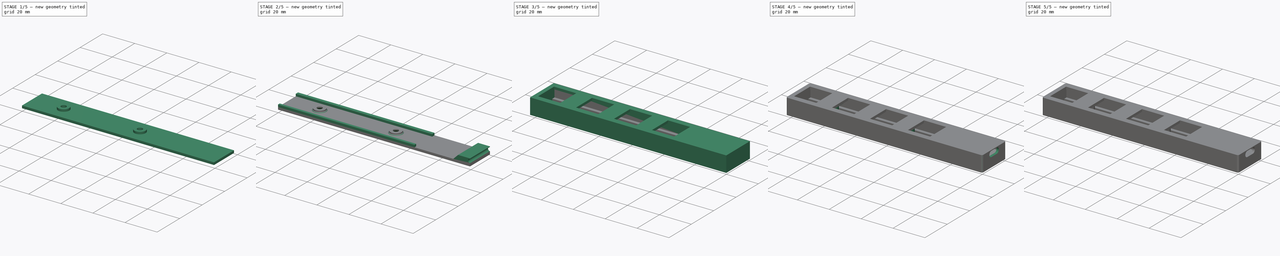
[diagram: build sequence overview — one tinted view per stage of 5, left to right]
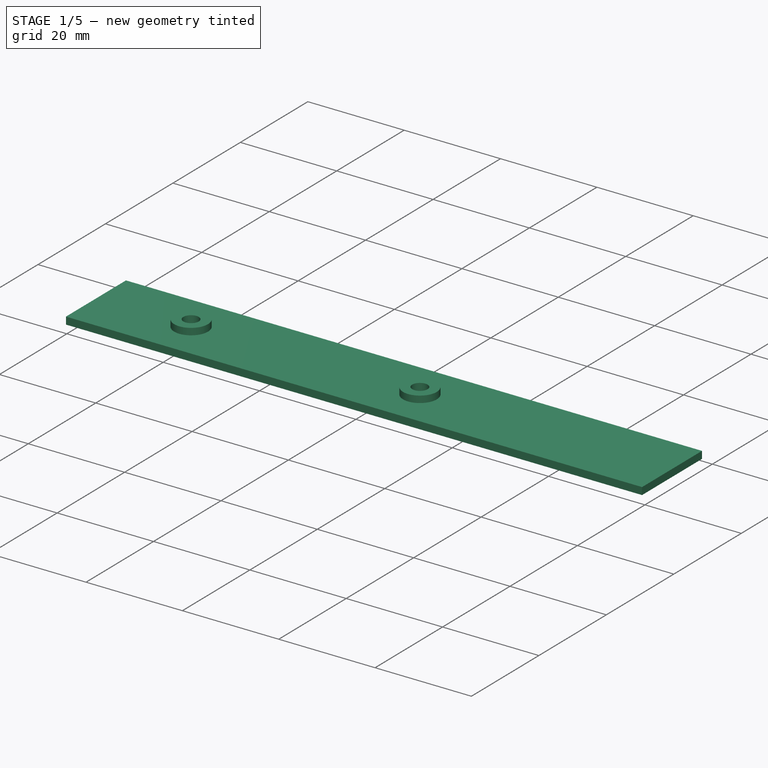
[diagram: stage 1 of 5 — iso view after this stage's code; geometry added in this stage tinted green]
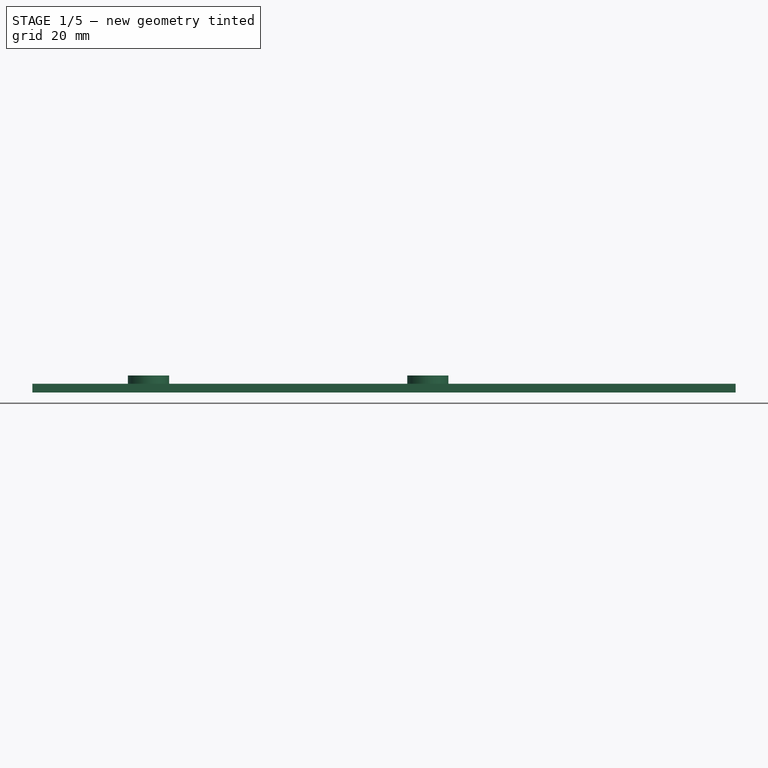
[diagram: stage 1 of 5 — front view after this stage's code; geometry added in this stage tinted green]
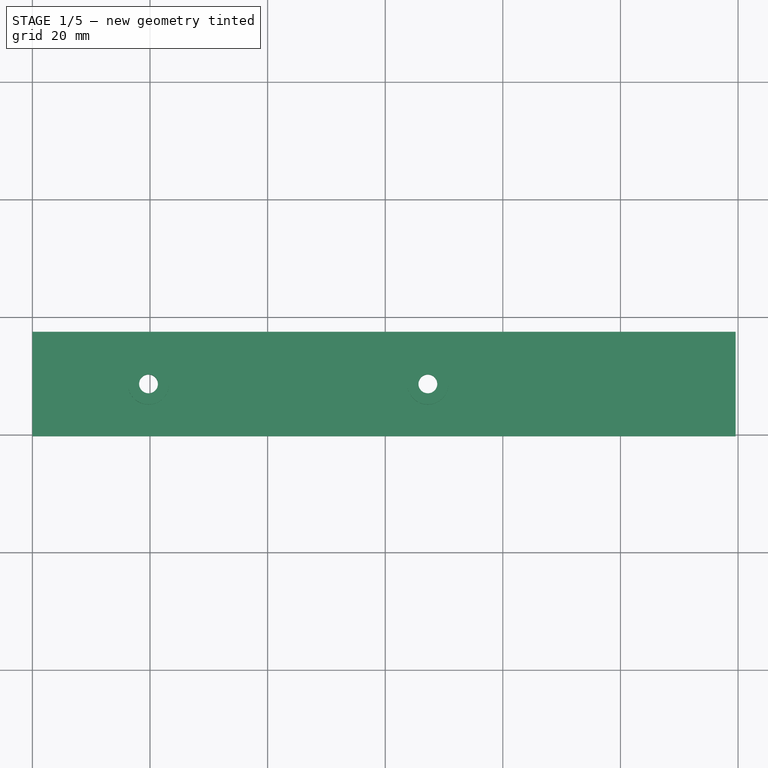
[diagram: stage 1 of 5 — top view after this stage's code; geometry added in this stage tinted green]
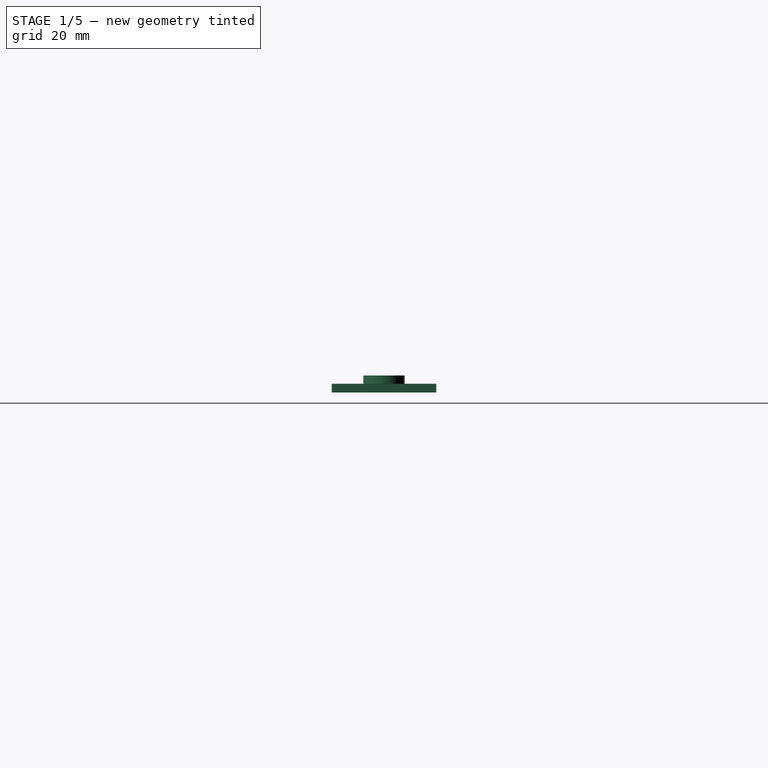
[diagram: stage 1 of 5 — right view after this stage's code; geometry added in this stage tinted green]
FCSTD DOCUMENT  (FreeCAD 0.18R4 (GitTag))
Label: extra-space
License: All rights reserved
LicenseURL: http://en.wikipedia.org/wiki/All_rights_reserved
objects: Part::Feature×32, Sketcher::SketchObject×17, PartDesign::Pad×11, App::Part×7, PartDesign::CoordinateSystem×6, PartDesign::ShapeBinder×5, PartDesign::Pocket×5, PartDesign::Chamfer×3, App::DocumentObjectGroup×2, PartDesign::Body×2, App::FeaturePython×1, PartDesign::Fillet×1
note: 98 computed .brp shape members not serialized (recipe doc carries the construction recipe); baked Part::Feature solids carry a one-line shape summary decoded from their .brp

FEATURE [PartDesign::CoordinateSystem] Local_CS_f5c5
  AttacherType = Attacher::AttachEngine3D
FEATURE [Part::Feature] Pcb_f5c5
  Placement = pos=(-93.4848,101.426,0) rot=(0,0,1;0rad)
  shape: bbox 109.2 x 17.27 x 1.6 mm, 53 faces (baked)
FEATURE [Sketcher::SketchObject] PCB_Sketch_f5c5
  sketch-geometry (8):
    g0: LineSegment StartX=86.156 StartY=16.256 StartZ=0 EndX=109.172 EndY=16.256 EndZ=0
    g1: LineSegment StartX=85.156 StartY=17.272 StartZ=0 EndX=86.156 EndY=16.256 EndZ=0
    g2: LineSegment StartX=86.156 StartY=1.016 StartZ=0 EndX=109.172 EndY=1.016 EndZ=0
    g3: LineSegment StartX=85.156 StartY=0.016 StartZ=0 EndX=86.156 EndY=1.016 EndZ=0
    g4: LineSegment StartX=0 StartY=0 StartZ=0 EndX=0 EndY=17.272 EndZ=0
    g5: LineSegment StartX=85.156 StartY=0.016 StartZ=0 EndX=0 EndY=0 EndZ=0
    g6: LineSegment StartX=109.172 StartY=16.256 StartZ=0 EndX=109.172 EndY=1.016 EndZ=0
    g7: LineSegment StartX=85.156 StartY=17.272 StartZ=0 EndX=0 EndY=17.272 EndZ=0
  constraints (8):
    c: Coincident(g4,g5)
    c: Coincident(g4,g7)
    c: Coincident(g3,g5)
    c: Coincident(g1,g7)
    c: Coincident(g2,g3)
    c: Coincident(g0,g1)
    c: Coincident(g2,g6)
    c: Coincident(g0,g6)
FEATURE [App::Part] Board_Geoms_f5c5
  Group = -> [Local_CS_f5c5,Pcb_f5c5,PCB_Sketch_f5c5]
  Origin = -> Origin
FEATURE [App::Part] Step_Models_f5c5
  Origin = -> Origin002
FEATURE [PartDesign::CoordinateSystem] LCS_Origin
  AttacherType = Attacher::AttachEngine3D
  MapMode = 2
  Support = -> [X_Axis003]
FEATURE [App::DocumentObjectGroup] Constraints
FEATURE [App::FeaturePython] Variables  # WARN: FeaturePython — macro-defined, semantics opaque (R4)
FEATURE [App::Part] Model
  Group = -> [LCS_Origin,Constraints,Variables]
  Origin = -> Origin003
  Type = Assembly4 Model
FEATURE [Part::Feature] Part__Feature  label="micro board"
  shape: bbox 33.02 x 3.27 x 17.78 mm, 246 faces (baked)
FEATURE [Part::Feature] Part__Feature014  label="micro usb shell"
  shape: bbox 8 x 2.95 x 5.63 mm, 171 faces (baked)
FEATURE [Part::Feature] Part__Feature015  label="micro usb internal"
  Placement = pos=(0,-0.25,0) rot=(0,0,1;0rad)
  shape: bbox 6.9 x 2.9 x 4 mm, 126 faces (baked)
FEATURE [Part::Feature] Part__Feature016  label="micro usb contact"
  Placement = pos=(1.3,-0.25,-0.1) rot=(0,0,1;0rad)
  shape: bbox 0.2 x 1.3 x 4.4 mm, 16 faces (baked)
FEATURE [Part::Feature] Part__Feature017  label="micro usb contact001"
  Placement = pos=(0.65,-0.25,-0.1) rot=(0,0,1;0rad)
  shape: bbox 0.2 x 1.3 x 4.4 mm, 16 faces (baked)
FEATURE [Part::Feature] Part__Feature018  label="micro usb contact002"
  Placement = pos=(-3e-15,-0.25,-0.1) rot=(0,0,1;0rad)
  shape: bbox 0.2 x 1.3 x 4.4 mm, 16 faces (baked)
FEATURE [Part::Feature] Part__Feature019  label="micro usb contact003"
  Placement = pos=(-0.65,-0.25,-0.1) rot=(0,0,1;0rad)
  shape: bbox 0.2 x 1.3 x 4.4 mm, 16 faces (baked)
FEATURE [Part::Feature] Part__Feature020  label="micro usb contact004"
  Placement = pos=(-1.3,-0.25,-0.1) rot=(0,0,1;0rad)
  shape: bbox 0.2 x 1.3 x 4.4 mm, 16 faces (baked)
FEATURE [App::Part] micro_usb  label="micro usb"
  Group = -> [Part__Feature014,Part__Feature015,Part__Feature016,Part__Feature017,Part__Feature018,Part__Feature019,Part__Feature020]
  Origin = -> Origin005
  Placement = pos=(-4.75,1.85,-7.62) rot=(0,-1,0;1.5708rad)
FEATURE [Part::Feature] Part__Feature021  label="atmega32U4"
  Placement = pos=(15.24,1.62,-7.62) rot=(0,1,0;3.92699rad)
  shape: bbox 9.899 x 1.02 x 9.899 mm, 1164 faces (baked)
FEATURE [Part::Feature] Part__Feature022  label="MICRO_cap106C"
  Placement = pos=(7.3558,1.6,-11.4427) rot=(0,1,0;1.5708rad)
  shape: bbox 4.001 x 1.811 x 1.701 mm, 124 faces (baked)
FEATURE [Part::Feature] Part__Feature023  label="MICRO_cap106C001"
  Placement = pos=(7.3558,1.6,-3.7973) rot=(0,1,0;1.5708rad)
  shape: bbox 4.001 x 1.811 x 1.701 mm, 124 faces (baked)
FEATURE [Part::Feature] Part__Feature037  label="micro_crystal 5x3"
  Placement = pos=(27.051,1.65,-7.62) rot=(0,1,0;1.5708rad)
  shape: bbox 3.4 x 1 x 5.7 mm, 43 faces (baked)
FEATURE [Part::Feature] Part__Feature038  label="micro_MIC5219"
  Placement = pos=(7.366,1.6,-7.874) rot=(0,1,0;3.14159rad)
  shape: bbox 2.9 x 1.2 x 3.683 mm, 123 faces (baked)
FEATURE [Part::Feature] Part__Feature039  label="MICRO_603 resistor 103"
  Placement = pos=(1.27,1.6,-3.81) rot=(0,-1,0;1.5708rad)
  shape: bbox 1.02 x 0.6154 x 2.362 mm, 141 faces, 4 solids (baked)
FEATURE [Part::Feature] Part__Feature040  label="MICRO_603 resistor 102"
  Placement = pos=(2.667,1.6,-3.81) rot=(0,-1,0;1.5708rad)
  shape: bbox 1.02 x 0.6154 x 2.362 mm, 131 faces, 4 solids (baked)
FEATURE [Part::Feature] Part__Feature041  label="MICRO_603 resistor 22"
  Placement = pos=(1.27,1.6,-11.43) rot=(0,-1,0;1.5708rad)
  shape: bbox 1.02 x 0.6154 x 2.362 mm, 144 faces, 4 solids (baked)
FEATURE [Part::Feature] Part__Feature042  label="MICRO_603 resistor 104"
  Placement = pos=(2.667,1.6,-11.43) rot=(0,-1,0;1.5708rad)
  shape: bbox 1.02 x 0.6154 x 2.362 mm, 144 faces, 4 solids (baked)
FEATURE [Part::Feature] Part__Feature043  label="MICRO_PTC-1206"
  Placement = pos=(4.445,1.6,-7.62) rot=(0,-1,0;1.5708rad)
  shape: bbox 1.821 x 1.171 x 3.85 mm, 118 faces (baked)
FEATURE [Part::Feature] Part__Feature044  label="MICRO_603 resistor 331"
  Placement = pos=(27.432,1.6,-11.938) rot=(0,0,1;0rad)
  shape: bbox 2.362 x 0.6154 x 1.02 mm, 158 faces, 4 solids (baked)
FEATURE [Part::Feature] Part__Feature045  label="MICRO_603 resistor 332"
  Placement = pos=(27.432,1.6,-3.302) rot=(0,0,1;0rad)
  shape: bbox 2.362 x 0.6154 x 1.02 mm, 158 faces, 4 solids (baked)
FEATURE [Part::Feature] Part__Feature046  label="MICRO_603 cap on pad"
  Placement = pos=(24.384,1.6,-9.398) rot=(0,-1,0;1.5708rad)
  shape: bbox 1.226 x 0.955 x 3.329 mm, 56 faces (baked)
FEATURE [Part::Feature] Part__Feature047  label="MICRO_603 cap on pad001"
  Placement = pos=(21.336,1.6,-11.938) rot=(0,0,1;0rad)
  shape: bbox 3.329 x 0.955 x 1.226 mm, 56 faces (baked)
FEATURE [Part::Feature] Part__Feature048  label="MICRO_603 cap on pad002"
  Placement = pos=(24.384,1.6,-5.715) rot=(0,-1,0;1.5708rad)
  shape: bbox 1.226 x 0.955 x 3.329 mm, 56 faces (baked)
FEATURE [Part::Feature] Part__Feature049  label="MICRO_603 cap on pad003"
  Placement = pos=(21.336,1.6,-3.1877) rot=(0,0,1;0rad)
  shape: bbox 3.329 x 0.955 x 1.226 mm, 56 faces (baked)
FEATURE [Part::Feature] Part__Feature050  label="MICRO_603 cap on pad004"
  Placement = pos=(11.0744,1.6,-3.5839) rot=(0,1,0;1.5708rad)
  shape: bbox 1.226 x 0.955 x 3.329 mm, 56 faces (baked)
FEATURE [Part::Feature] Part__Feature051  label="MICRO_603 cap on pad005"
  Placement = pos=(10.6528,1.6,-11.4681) rot=(0,-1,0;1.5708rad)
  shape: bbox 1.226 x 0.955 x 3.329 mm, 56 faces (baked)
FEATURE [Part::Feature] Part__Feature052  label="MICRO_603 cap on pad006"
  Placement = pos=(4.1758,1.6,-11.43) rot=(0,1,0;1.5708rad)
  shape: bbox 1.226 x 0.955 x 3.329 mm, 56 faces (baked)
FEATURE [Part::Feature] Part__Feature053  label="SOD 323"
  Placement = pos=(2.6416,1.6,-7.62) rot=(0,-1,0;1.5708rad)
  shape: bbox 1.25 x 1.105 x 2.93 mm, 59 faces (baked)
FEATURE [Part::Feature] Part__Feature054  label="MICRO_led"
  Placement = pos=(24.384,1.62,-2.6907) rot=(0,0,1;0rad)
  shape: bbox 2.481 x 0.7208 x 0.8565 mm, 81 faces, 2 solids (baked)
FEATURE [Part::Feature] Part__Feature055  label="MICRO_led001"
  Placement = pos=(24.384,1.62,-11.938) rot=(0,0,1;0rad)
  shape: bbox 2.481 x 0.7208 x 0.8565 mm, 81 faces, 2 solids (baked)
FEATURE [Part::Feature] Part__Feature056  label="MICRO_led002"
  Placement = pos=(4.1046,1.62,-3.81) rot=(0,1,0;1.5708rad)
  shape: bbox 0.8565 x 0.7208 x 2.481 mm, 81 faces, 2 solids (baked)
FEATURE [PartDesign::CoordinateSystem] PIN_10
  AttacherType = Attacher::AttachEngine3D
  MapMode = 11
  Placement = pos=(87.836,1.016,0) rot=(0,0,1;1.5708rad)
  Support = -> [Pcb_f5c5]
FEATURE [PartDesign::CoordinateSystem] PIN_10001
  AttacherType = Attacher::AttachEngine3D
  MapMode = 11
  Placement = pos=(27.94,0,-15.24) rot=(-1,0,0;1.5708rad)
  Support = -> [Part__Feature]
FEATURE [App::Part] ARDUINO_PRO_MICRO  label="ARDUINO PRO MICRO"
  Group = -> [Part__Feature,micro_usb,Part__Feature021,Part__Feature022,Part__Feature023,Part__Feature037,Part__Feature038,Part__Feature039,Part__Feature040,Part__Feature041,Part__Feature042,Part__Feature043,Part__Feature044,Part__Feature045,Part__Feature046,Part__Feature047,Part__Feature048,Part__Feature049,Part__Feature050,Part__Feature051,Part__Feature052,Part__Feature053,Part__Feature054,Part__Feature055,+2 more]
  Origin = -> Origin007
  Placement = pos=(0,0,0) rot=(0,0.707107,0.707107;3.14159rad)
FEATURE [PartDesign::CoordinateSystem] ORIGIN
  AttacherType = Attacher::AttachEngine3D
FEATURE [App::Part] Board_f5c5  label="pcb"
  Group = -> [Board_Geoms_f5c5,Step_Models_f5c5,PIN_10,ORIGIN]
  Origin = -> Origin001
FEATURE [PartDesign::CoordinateSystem] LCS_0
  AttacherType = Attacher::AttachEngine3D
  MapMode = 2
  Support = -> [X_Axis008]
FEATURE [PartDesign::ShapeBinder] CopyPcb_f5c5
  Placement = pos=(-93.4848,101.426,-1.6) rot=(0,0,1;0rad)
  TraceSupport = false
FEATURE [Sketcher::SketchObject] Sketch
  ExternalGeometry = -> [CopyPcb_f5c5]
  MapMode = 5
  Placement = pos=(-93.4848,101.426,-1.6) rot=(1,0,0;3.14159rad)
  Support = -> [CopyPcb_f5c5]
  sketch-geometry (2):
    g0: Circle CenterX=113.234 CenterY=92.79 CenterZ=0 NormalX=0 NormalY=0 NormalZ=1 AngleXU=0 Radius=1.6
    g1: Circle CenterX=113.234 CenterY=92.79 CenterZ=0 NormalX=0 NormalY=0 NormalZ=1 AngleXU=0 Radius=3.5
  constraints (3):
    c: Coincident(g0,g-3)
    c: Radius(g0) = 1.6
    c: Coincident(g1,g0)
FEATURE [PartDesign::Pad] Pad
  Length = 1.4
  Length2 = 100
  Placement = pos=(-93.4848,101.426,-1.6) rot=(0,0,1;0rad)
  Profile = -> Sketch
  Type = 0
FEATURE [Sketcher::SketchObject] Sketch001
  MapMode = 5
  Placement = pos=(-93.4848,101.426,-3) rot=(1,0,0;3.14159rad)
  Support = -> [Pad]
  sketch-geometry (5):
    g0: LineSegment StartX=213.071 StartY=101.68 StartZ=0 EndX=213.071 EndY=83.9 EndZ=0
    g1: LineSegment StartX=213.071 StartY=101.68 StartZ=0 EndX=93.4848 EndY=101.68 EndZ=0
    g2: LineSegment StartX=213.071 StartY=83.9 StartZ=0 EndX=93.4848 EndY=83.9 EndZ=0
    g3: LineSegment StartX=93.4848 StartY=101.68 StartZ=0 EndX=93.4848 EndY=83.9 EndZ=0
    g4: Circle CenterX=113.234 CenterY=92.79 CenterZ=0 NormalX=0 NormalY=0 NormalZ=1 AngleXU=0 Radius=1.6
  constraints (12):
    c: Coincident(g0,g-3)
    c: Coincident(g0,g-3)
    c: Coincident(g1,g0)
    c: Horizontal(g1)
    c: Coincident(g2,g0)
    c: Horizontal(g2)
    c: Coincident(g3,g1)
    c: Coincident(g3,g2)
    c: Vertical(g3)
    c: PointOnObject(g-4,g3)
    c: Coincident(g4,g-5)
    c: Equal(g-5,g4)
FEATURE [PartDesign::Pad] Pad001
  BaseFeature = -> Pad
  Length = 1.5
  Length2 = 100
  Placement = pos=(-93.4848,101.426,-1.6) rot=(0,0,1;0rad)
  Profile = -> Sketch001
  Type = 0
FEATURE [Sketcher::SketchObject] Sketch002
  ExternalGeometry = -> [CopyPcb_f5c5,Pad001]
  MapMode = 5
  Placement = pos=(-93.4848,101.426,-3) rot=(0,0,1;0rad)
  Support = -> [Pad001]
  sketch-geometry (2):
    g0: Circle CenterX=160.734 CenterY=-92.79 CenterZ=0 NormalX=0 NormalY=0 NormalZ=1 AngleXU=0 Radius=1.6
    g1: Circle CenterX=160.734 CenterY=-92.79 CenterZ=0 NormalX=0 NormalY=0 NormalZ=1 AngleXU=0 Radius=3.5
  constraints (4):
    c: Coincident(g0,g-3)
    c: Coincident(g1,g0)
    c: Equal(g-4,g1)
    c: Equal(g0,g-3)
FEATURE [PartDesign::Pad] Pad002
  BaseFeature = -> Pad001
  Length = 1.4
  Length2 = 100
  Placement = pos=(-93.4848,101.426,-1.6) rot=(0,0,1;0rad)
  Profile = -> Sketch002
  Type = 0
FEATURE [Sketcher::SketchObject] Sketch003
  ExternalGeometry = -> [CopyPcb_f5c5]
  MapMode = 5
  Placement = pos=(-93.4848,101.426,-4.5) rot=(1,0,0;3.14159rad)
  Support = -> [Pad002]
  sketch-geometry (1):
    g0: Circle CenterX=160.734 CenterY=92.79 CenterZ=0 NormalX=0 NormalY=0 NormalZ=1 AngleXU=0 Radius=1.6
  constraints (2):
    c: Coincident(g0,g-3)
    c: Equal(g0,g-3)
FEATURE [PartDesign::Pocket] Pocket
  BaseFeature = -> Pad002
  Length = 5
  Length2 = 100
  Placement = pos=(-93.4848,101.426,-1.6) rot=(0,0,1;0rad)
  Profile = -> Sketch003
  Type = 1
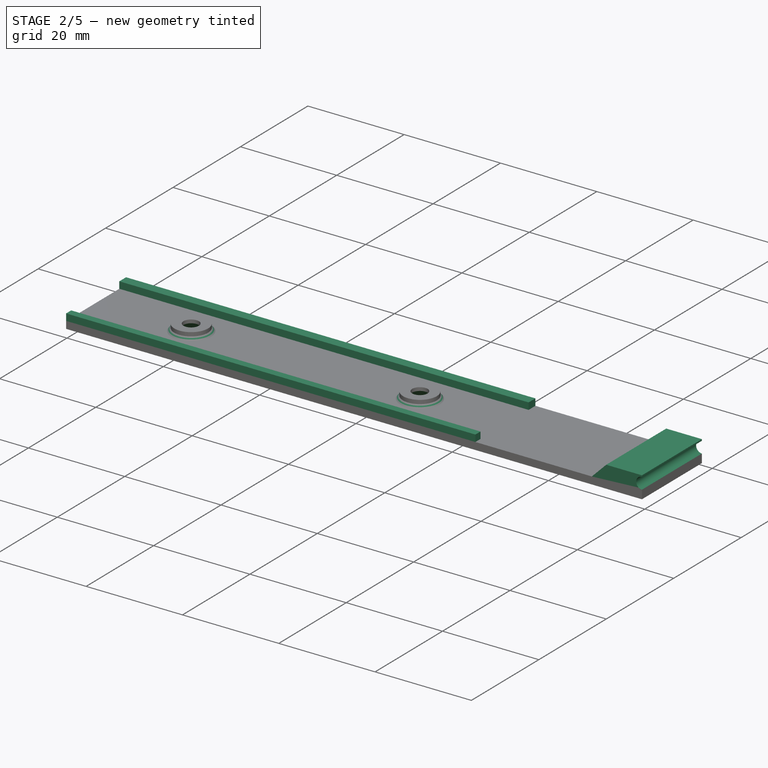
[diagram: stage 2 of 5 — iso view after this stage's code; geometry added in this stage tinted green]
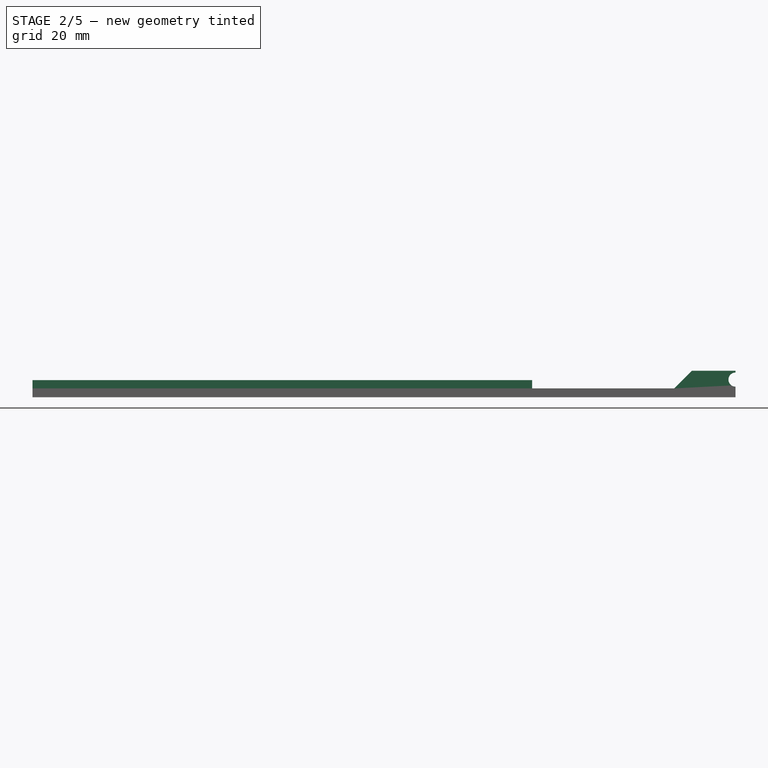
[diagram: stage 2 of 5 — front view after this stage's code; geometry added in this stage tinted green]
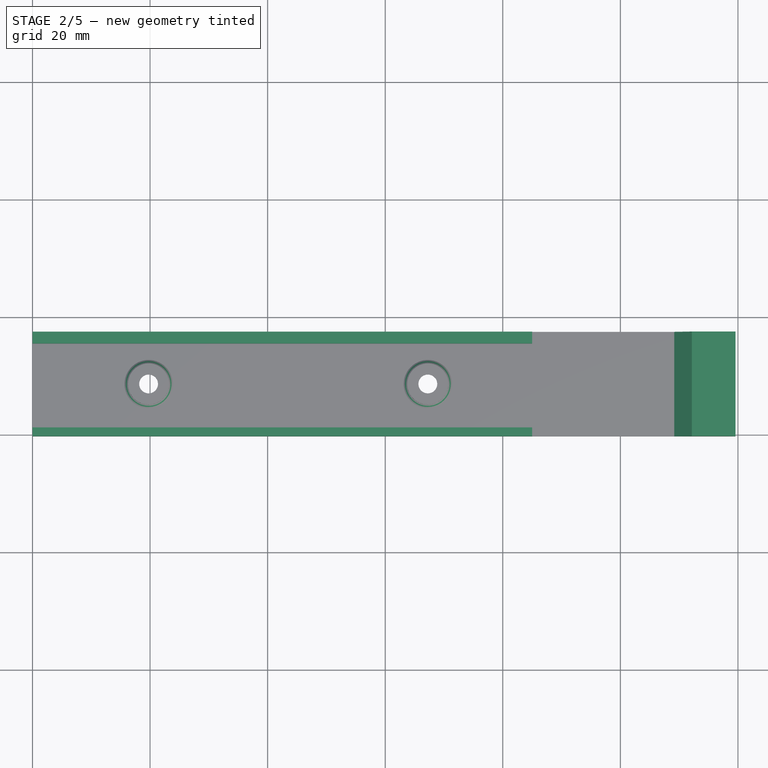
[diagram: stage 2 of 5 — top view after this stage's code; geometry added in this stage tinted green]
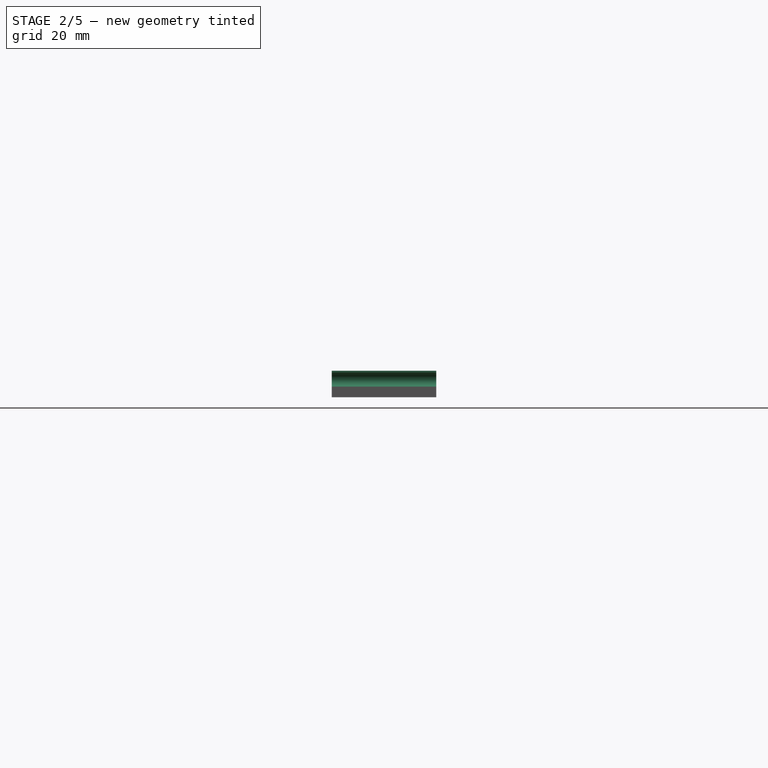
[diagram: stage 2 of 5 — right view after this stage's code; geometry added in this stage tinted green]
FEATURE [Sketcher::SketchObject] Sketch004
  MapMode = 5
  Placement = pos=(-93.4848,-0.254,-1.6) rot=(1,0,0;1.5708rad)
  Support = -> [Pocket]
  sketch-geometry (8):
    g0: LineSegment StartX=202.657 StartY=-1.4 StartZ=0 EndX=205.657 EndY=1.6 EndZ=0
    g1: LineSegment [constr] StartX=202.657 StartY=2e-15 StartZ=0 EndX=202.657 EndY=-1.4 EndZ=0
    g2: ArcOfCircle CenterX=213.071 CenterY=0.1 CenterZ=0 NormalX=0 NormalY=0 NormalZ=1 AngleXU=0 Radius=1.2 StartAngle=1.5708 EndAngle=4.71239
    g3: LineSegment StartX=213.071 StartY=1.3 StartZ=0 EndX=213.071 EndY=1.6 EndZ=0
    g4: LineSegment StartX=213.071 StartY=-1.1 StartZ=0 EndX=213.071 EndY=-1.4 EndZ=0
    g5: LineSegment StartX=205.657 StartY=1.6 StartZ=0 EndX=213.071 EndY=1.6 EndZ=0
    g6: LineSegment StartX=213.071 StartY=-1.4 StartZ=0 EndX=202.657 EndY=-1.4 EndZ=0
    g7: LineSegment [constr] StartX=213.071 StartY=1.3 StartZ=0 EndX=213.071 EndY=-1.1 EndZ=0
  constraints (22):
    c: PointOnObject(g0,g-4)
    c: Coincident(g1,g-3)
    c: Coincident(g1,g0)
    c: Vertical(g1)
    c: Coincident(g3,g2)
    c: Vertical(g3)
    c: Coincident(g4,g2)
    c: PointOnObject(g4,g-4)
    c: Vertical(g4)
    c: Equal(g3,g4)
    c: Radius(g2) = 1.2
    c: Coincident(g5,g0)
    c: Coincident(g5,g3)
    c: Coincident(g6,g4)
    c: Coincident(g6,g0)
    c: Horizontal(g5)
    c: Coincident(g3,g-5)
    c: Coincident(g7,g2)
    c: Coincident(g7,g2)
    c: PointOnObject(g2,g7)
    c: Vertical(g7)
    c: Angle(g-6,g0) = 0.785398
FEATURE [PartDesign::Pad] Pad003
  BaseFeature = -> Pocket
  Length = 2
  Length2 = 100
  Placement = pos=(-93.4848,101.426,-1.6) rot=(0,0,1;0rad)
  Profile = -> Sketch004
  Reversed = true
  Type = 3
  UpToFace = -> Pocket [Face7]
FEATURE [PartDesign::Chamfer] Chamfer
  Base = -> Pad003 [Edge27,Edge34]
  BaseFeature = -> Pad003
  Placement = pos=(-93.4848,101.426,-1.6) rot=(0,0,1;0rad)
  Size = 2.2
FEATURE [PartDesign::Chamfer] Chamfer002
  Base = -> Chamfer [Edge13,Edge27]
  BaseFeature = -> Chamfer
  Placement = pos=(-93.4848,101.426,-1.6) rot=(0,0,1;0rad)
  Size = 0.6
FEATURE [PartDesign::Body] Body001  label="Top"
  Group = -> [ShapeBinder,Sketch005,Pad004,Sketch006,Pad005,ShapeBinder001,Sketch007,Pocket001,ShapeBinder002,Sketch008,Pad006,Sketch009,Pad007,Sketch010,Pocket002,Fillet,ShapeBinder003,Sketch011,Pad008,Sketch012,Pocket003,Chamfer001,Sketch013,Pocket004]
  Origin = -> Origin010
  Tip = -> Pocket004
FEATURE [Sketcher::SketchObject] Sketch014
  ExternalGeometry = -> [Chamfer002]
  MapMode = 5
  Placement = pos=(5.68e-14,101.426,-1.6) rot=(0.57735,-0.57735,-0.57735;2.0944rad)
  Support = -> [Chamfer002]
  sketch-geometry (8):
    g0: LineSegment StartX=83.9 StartY=0 StartZ=0 EndX=83.9 EndY=-1.4 EndZ=0
    g1: LineSegment StartX=101.68 StartY=0 StartZ=0 EndX=101.68 EndY=-1.4 EndZ=0
    g2: LineSegment StartX=83.9 StartY=0 StartZ=0 EndX=85.9 EndY=0 EndZ=0
    g3: LineSegment StartX=85.9 StartY=0 StartZ=0 EndX=85.9 EndY=-1.4 EndZ=0
    g4: LineSegment StartX=83.9 StartY=-1.4 StartZ=0 EndX=85.9 EndY=-1.4 EndZ=0
    g5: LineSegment StartX=101.68 StartY=0 StartZ=0 EndX=100.18 EndY=0 EndZ=0
    g6: LineSegment StartX=100.18 StartY=0 StartZ=0 EndX=100.18 EndY=-1.4 EndZ=0
    g7: LineSegment StartX=100.18 StartY=-1.4 StartZ=0 EndX=101.68 EndY=-1.4 EndZ=0
  constraints (24):
    c: PointOnObject(g0,g-3)
    c: PointOnObject(g1,g-4)
    c: Coincident(g2,g0)
    c: PointOnObject(g2,g-1)
    c: Horizontal(g2)
    c: Coincident(g3,g2)
    c: PointOnObject(g3,g-5)
    c: Vertical(g3)
    c: Coincident(g4,g0)
    c: Coincident(g4,g3)
    c: Horizontal(g4)
    c: Coincident(g5,g1)
    c: PointOnObject(g5,g-1)
    c: Horizontal(g5)
    c: Coincident(g6,g5)
    c: PointOnObject(g6,g-5)
    c: Vertical(g6)
    c: Coincident(g7,g6)
    c: DistanceX(g5,g5) = 1.5
    c: DistanceX(g2,g2) = 2
    c: PointOnObject(g0,g-3)
    c: PointOnObject(g1,g-4)
    c: PointOnObject(g1,g-5)
    c: Coincident(g7,g1)
FEATURE [PartDesign::Pad] Pad009
  BaseFeature = -> Chamfer002
  Length = 85
  Length2 = 100
  Placement = pos=(-93.4848,101.426,-1.6) rot=(0,0,1;0rad)
  Profile = -> Sketch014
  Reversed = true
  Type = 0
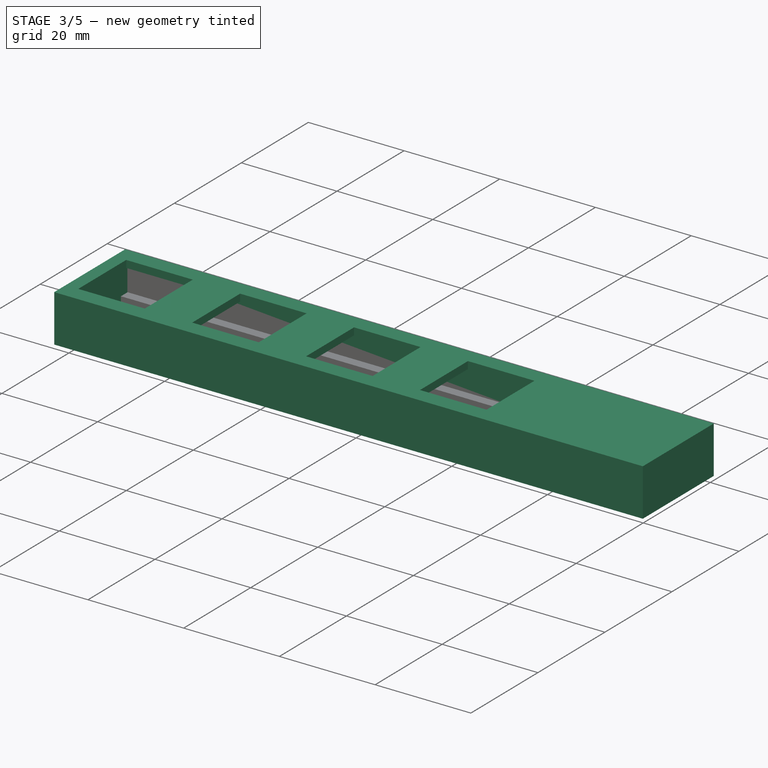
[diagram: stage 3 of 5 — iso view after this stage's code; geometry added in this stage tinted green]
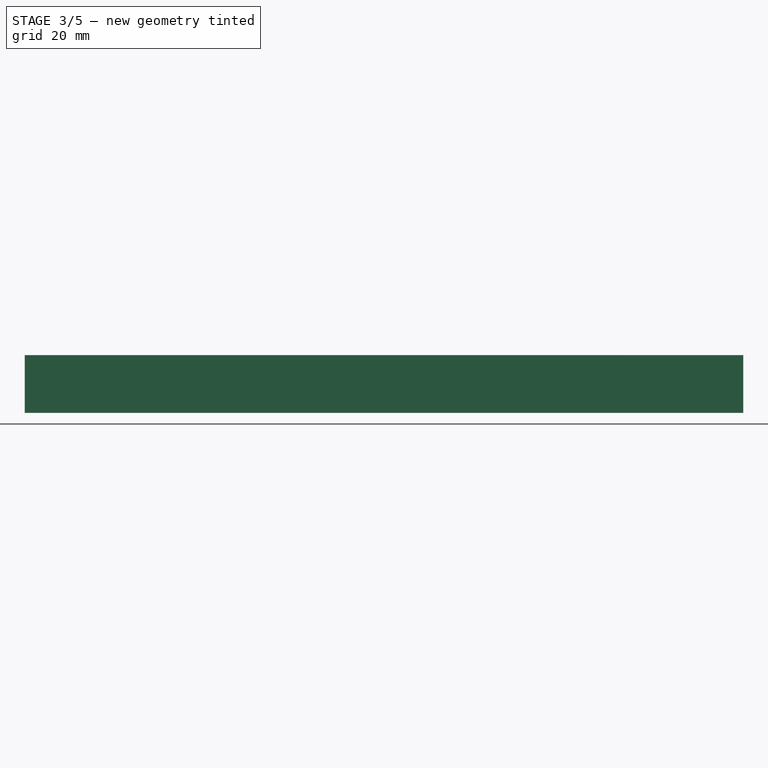
[diagram: stage 3 of 5 — front view after this stage's code; geometry added in this stage tinted green]
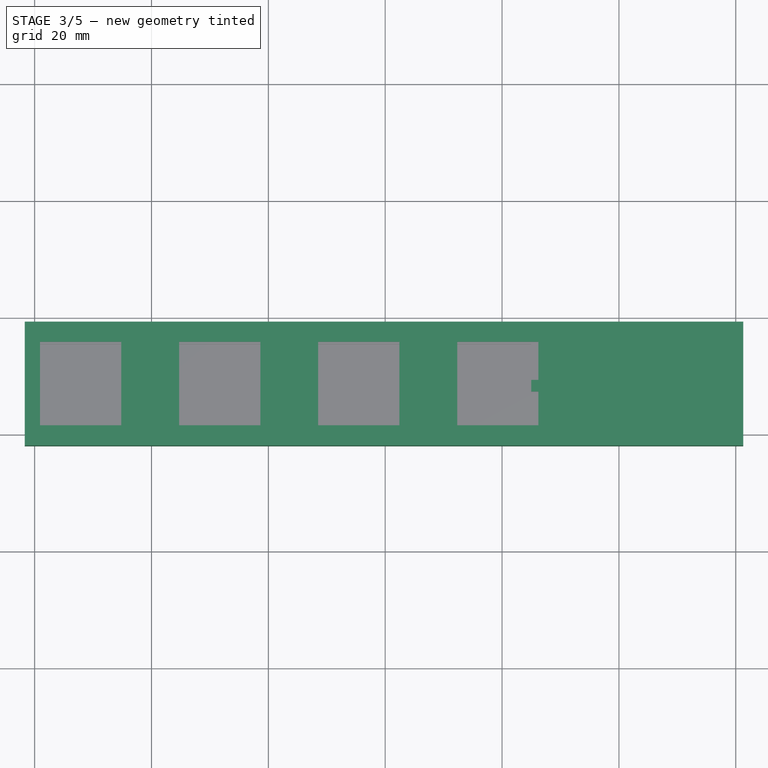
[diagram: stage 3 of 5 — top view after this stage's code; geometry added in this stage tinted green]
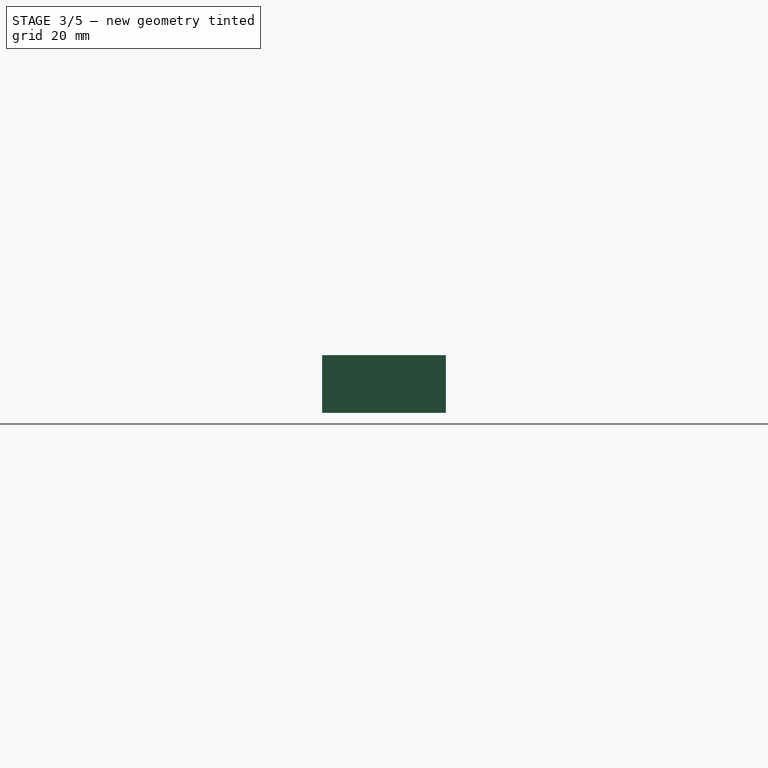
[diagram: stage 3 of 5 — right view after this stage's code; geometry added in this stage tinted green]
FEATURE [PartDesign::ShapeBinder] ShapeBinder
  Placement = pos=(-93.4848,101.426,-1.6) rot=(0,0,1;0rad)
  Support = -> [Chamfer]
  TraceSupport = false
FEATURE [Sketcher::SketchObject] Sketch005
  ExternalGeometry = -> [ShapeBinder]
  MapMode = 5
  Placement = pos=(-93.4848,101.426,-4.5) rot=(1,0,0;3.14159rad)
  Support = -> [ShapeBinder]
  sketch-geometry (8):
    g0: LineSegment StartX=93.2848 StartY=101.88 StartZ=0 EndX=213.271 EndY=101.88 EndZ=0
    g1: LineSegment StartX=213.271 StartY=101.88 StartZ=0 EndX=213.271 EndY=83.7 EndZ=0
    g2: LineSegment StartX=213.271 StartY=83.7 StartZ=0 EndX=93.2848 EndY=83.7 EndZ=0
    g3: LineSegment StartX=93.2848 StartY=83.7 StartZ=0 EndX=93.2848 EndY=101.88 EndZ=0
    g4: LineSegment StartX=214.771 StartY=82.2 StartZ=0 EndX=91.7848 EndY=82.2 EndZ=0
    g5: LineSegment StartX=91.7848 StartY=82.2 StartZ=0 EndX=91.7848 EndY=103.38 EndZ=0
    g6: LineSegment StartX=91.7848 StartY=103.38 StartZ=0 EndX=214.771 EndY=103.38 EndZ=0
    g7: LineSegment StartX=214.771 StartY=103.38 StartZ=0 EndX=214.771 EndY=82.2 EndZ=0
  constraints (24):
    c: Coincident(g0,g1)
    c: Coincident(g1,g2)
    c: Coincident(g2,g3)
    c: Coincident(g3,g0)
    c: Horizontal(g0)
    c: Horizontal(g2)
    c: Vertical(g1)
    c: Vertical(g3)
    c: Coincident(g4,g5)
    c: Coincident(g5,g6)
    c: Coincident(g6,g7)
    c: Coincident(g7,g4)
    c: Horizontal(g4)
    c: Horizontal(g6)
    c: Vertical(g5)
    c: Vertical(g7)
    c: DistanceX(g0,g-4) = 0.2
    c: DistanceY(g-4,g0) = 0.2
    c: DistanceY(g1,g-6) = 0.2
    c: DistanceX(g-6,g1) = 0.2
    c: DistanceX(g0,g6) = 1.5
    c: DistanceY(g0,g6) = 1.5
    c: DistanceY(g4,g2) = 1.5
    c: DistanceX(g4,g2) = 1.5
FEATURE [PartDesign::Pad] Pad004
  Length = 9.9
  Length2 = 100
  Placement = pos=(-93.4848,101.426,-1.6) rot=(0,0,1;0rad)
  Profile = -> Sketch005
  Reversed = true
  Type = 0
FEATURE [Sketcher::SketchObject] Sketch006
  ExternalGeometry = -> [Pad004]
  MapMode = 5
  Placement = pos=(-93.4848,101.426,5.4) rot=(0,0,1;0rad)
  Support = -> [Pad004]
  sketch-geometry (4):
    g0: LineSegment StartX=91.7848 StartY=-82.2 StartZ=0 EndX=214.771 EndY=-82.2 EndZ=0
    g1: LineSegment StartX=214.771 StartY=-82.2 StartZ=0 EndX=214.771 EndY=-103.38 EndZ=0
    g2: LineSegment StartX=214.771 StartY=-103.38 StartZ=0 EndX=91.7848 EndY=-103.38 EndZ=0
    g3: LineSegment StartX=91.7848 StartY=-103.38 StartZ=0 EndX=91.7848 EndY=-82.2 EndZ=0
  constraints (12):
    c: Coincident(g0,g1)
    c: Coincident(g1,g2)
    c: Coincident(g2,g3)
    c: Coincident(g3,g0)
    c: Horizontal(g0)
    c: Horizontal(g2)
    c: Vertical(g1)
    c: Vertical(g3)
    c: PointOnObject(g0,g-4)
    c: PointOnObject(g0,g-5)
    c: PointOnObject(g1,g-3)
    c: PointOnObject(g1,g-6)
FEATURE [PartDesign::Pad] Pad005
  BaseFeature = -> Pad004
  Length = 1.5
  Length2 = 100
  Placement = pos=(-93.4848,101.426,-1.6) rot=(0,0,1;0rad)
  Profile = -> Sketch006
  Reversed = true
  Type = 0
FEATURE [PartDesign::ShapeBinder] ShapeBinder001
  Support = -> [Pcb_f5c5]
  TraceSupport = false
FEATURE [Sketcher::SketchObject] Sketch007
  ExternalGeometry = -> [ShapeBinder001]
  MapMode = 5
  Placement = pos=(-93.4848,101.426,5.4) rot=(0,0,1;0rad)
  Support = -> [Pad005]
  sketch-geometry (26):
    g0: LineSegment StartX=94.4088 StartY=-85.64 StartZ=0 EndX=108.309 EndY=-85.64 EndZ=0
    g1: LineSegment StartX=108.309 StartY=-85.64 StartZ=0 EndX=108.309 EndY=-99.94 EndZ=0
    g2: LineSegment StartX=108.309 StartY=-99.94 StartZ=0 EndX=94.4088 EndY=-99.94 EndZ=0
    g3: LineSegment StartX=94.4088 StartY=-99.94 StartZ=0 EndX=94.4088 EndY=-85.64 EndZ=0
    g4: LineSegment StartX=118.209 StartY=-85.64 StartZ=0 EndX=132.109 EndY=-85.64 EndZ=0
    g5: LineSegment StartX=132.109 StartY=-85.64 StartZ=0 EndX=132.109 EndY=-99.94 EndZ=0
    g6: LineSegment StartX=132.109 StartY=-99.94 StartZ=0 EndX=118.209 EndY=-99.94 EndZ=0
    g7: LineSegment StartX=118.209 StartY=-99.94 StartZ=0 EndX=118.209 EndY=-85.64 EndZ=0
    g8: LineSegment StartX=142.009 StartY=-85.64 StartZ=0 EndX=155.909 EndY=-85.64 EndZ=0
    g9: LineSegment StartX=155.909 StartY=-85.64 StartZ=0 EndX=155.909 EndY=-99.94 EndZ=0
    g10: LineSegment StartX=155.909 StartY=-99.94 StartZ=0 EndX=142.009 EndY=-99.94 EndZ=0
    g11: LineSegment StartX=142.009 StartY=-99.94 StartZ=0 EndX=142.009 EndY=-85.64 EndZ=0
    g12: LineSegment StartX=165.809 StartY=-85.64 StartZ=0 EndX=179.709 EndY=-85.64 EndZ=0
    g13: LineSegment StartX=179.709 StartY=-85.64 StartZ=0 EndX=179.709 EndY=-99.94 EndZ=0
    g14: LineSegment StartX=179.709 StartY=-99.94 StartZ=0 EndX=165.809 EndY=-99.94 EndZ=0
    g15: LineSegment StartX=165.809 StartY=-99.94 StartZ=0 EndX=165.809 EndY=-85.64 EndZ=0
    g16: LineSegment [constr] StartX=108.309 StartY=-85.64 StartZ=0 EndX=118.209 EndY=-85.64 EndZ=0
    g17: LineSegment [constr] StartX=132.109 StartY=-85.64 StartZ=0 EndX=142.009 EndY=-85.64 EndZ=0
    g18: LineSegment [constr] StartX=155.909 StartY=-85.64 StartZ=0 EndX=165.809 EndY=-85.64 EndZ=0
    g19: LineSegment [constr] StartX=108.309 StartY=-99.94 StartZ=0 EndX=118.209 EndY=-99.94 EndZ=0
    g20: LineSegment [constr] StartX=132.109 StartY=-99.94 StartZ=0 EndX=142.009 EndY=-99.94 EndZ=0
    g21: LineSegment [constr] StartX=155.909 StartY=-99.94 StartZ=0 EndX=165.809 EndY=-99.94 EndZ=0
    g22: LineSegment [constr] StartX=94.4088 StartY=-85.64 StartZ=0 EndX=101.359 EndY=-92.79 EndZ=0
    g23: LineSegment [constr] StartX=108.309 StartY=-99.94 StartZ=0 EndX=101.359 EndY=-92.79 EndZ=0
    g24: LineSegment [constr] StartX=165.809 StartY=-99.94 StartZ=0 EndX=172.759 EndY=-92.79 EndZ=0
    g25: LineSegment [constr] StartX=179.709 StartY=-85.64 StartZ=0 EndX=172.759 EndY=-92.79 EndZ=0
  constraints (68):
    c: Coincident(g0,g1)
    c: Coincident(g1,g2)
    c: Coincident(g2,g3)
    c: Coincident(g3,g0)
    c: Horizontal(g0)
    c: Horizontal(g2)
    c: Vertical(g1)
    c: Vertical(g3)
    c: Coincident(g4,g5)
    c: Coincident(g5,g6)
    c: Coincident(g6,g7)
    c: Coincident(g7,g4)
    c: Horizontal(g4)
    c: Horizontal(g6)
    c: Vertical(g5)
    c: Vertical(g7)
    c: Coincident(g8,g9)
    c: Coincident(g9,g10)
    c: Coincident(g10,g11)
    c: Coincident(g11,g8)
    c: Horizontal(g8)
    c: Horizontal(g10)
    c: Vertical(g9)
    c: Vertical(g11)
    c: Coincident(g12,g13)
    c: Coincident(g13,g14)
    c: Coincident(g14,g15)
    c: Coincident(g15,g12)
    c: Horizontal(g12)
    c: Horizontal(g14)
    c: Vertical(g13)
    c: Vertical(g15)
    c: Coincident(g16,g0)
    c: Coincident(g16,g4)
    c: Horizontal(g16)
    c: Coincident(g17,g4)
    c: Coincident(g17,g8)
    c: Coincident(g18,g8)
    c: Coincident(g18,g12)
    c: Coincident(g19,g1)
    c: Coincident(g19,g6)
    c: Horizontal(g19)
    c: Coincident(g20,g5)
    c: Coincident(g20,g10)
    c: Horizontal(g20)
    c: Coincident(g21,g9)
    c: Coincident(g21,g14)
    c: Horizontal(g21)
    c: Horizontal(g18)
    c: Horizontal(g17)
    c: Equal(g0,g4)
    c: Equal(g4,g8)
    c: Equal(g8,g12)
    c: Equal(g16,g17)
    c: Equal(g17,g18)
    c: Coincident(g22,g0)
    c: Coincident(g22,g-3)
    c: Coincident(g23,g1)
    c: Coincident(g23,g22)
    c: Coincident(g24,g14)
    c: Coincident(g24,g-6)
    c: Coincident(g25,g12)
    c: Coincident(g25,g24)
    c: Parallel(g25,g24)
    c: Equal(g25,g24)
    c: Equal(g23,g22)
    c: DistanceY(g1,g1) = 14.3
    c: DistanceX(g0,g0) = 13.9
FEATURE [PartDesign::Pocket] Pocket001
  BaseFeature = -> Pad005
  Length = 5
  Length2 = 100
  Placement = pos=(-93.4848,101.426,-1.6) rot=(0,0,1;0rad)
  Profile = -> Sketch007
  Type = 1
FEATURE [Sketcher::SketchObject] Sketch016
  ExternalGeometry = -> [Pad009]
  MapMode = 5
  Placement = pos=(-93.4848,101.426,-3) rot=(0,0,1;0rad)
  Support = -> [Pad009]
  sketch-geometry (6):
    g0: LineSegment StartX=178.485 StartY=-94.04 StartZ=0 EndX=205.657 EndY=-94.04 EndZ=0
    g1: LineSegment StartX=178.485 StartY=-92.04 StartZ=0 EndX=205.657 EndY=-92.04 EndZ=0
    g2: LineSegment StartX=205.657 StartY=-92.04 StartZ=0 EndX=205.657 EndY=-94.04 EndZ=0
    g3: LineSegment [constr] StartX=178.485 StartY=-94.04 StartZ=0 EndX=178.485 EndY=-100.18 EndZ=0
    g4: LineSegment [constr] StartX=178.485 StartY=-85.9 StartZ=0 EndX=178.485 EndY=-92.04 EndZ=0
    g5: LineSegment StartX=178.485 StartY=-92.04 StartZ=0 EndX=178.485 EndY=-94.04 EndZ=0
  constraints (16):
    c: PointOnObject(g0,g-5)
    c: Horizontal(g0)
    c: Horizontal(g1)
    c: Coincident(g2,g1)
    c: Coincident(g2,g0)
    c: Coincident(g3,g0)
    c: Coincident(g3,g-4)
    c: Vertical(g3)
    c: Coincident(g4,g-3)
    c: Coincident(g4,g1)
    c: Vertical(g4)
    c: Coincident(g5,g1)
    c: Coincident(g5,g0)
    c: Equal(g3,g4)
    c: DistanceY(g5,g5) = 2
    c: Vertical(g2)
FEATURE [PartDesign::Pad] Pad010
  BaseFeature = -> Pad009
  Length = 10
  Length2 = 100
  Placement = pos=(-93.4848,101.426,-1.6) rot=(0,0,1;0rad)
  Profile = -> Sketch016
  Type = 3
  UpToFace = -> Pad009 [Face32]
FEATURE [PartDesign::Body] Body  label="Bottom"
  Group = -> [CopyPcb_f5c5,Sketch,Pad,Sketch001,Pad001,Sketch002,Pad002,Sketch003,Pocket,Sketch004,Pad003,Chamfer,Chamfer002,Sketch014,Pad009,Sketch016,Pad010]
  Origin = -> Origin009
  Tip = -> Pad010
FEATURE [App::Part] Case
  Group = -> [LCS_0,Body,Body001]
  Origin = -> Origin008
FEATURE [App::DocumentObjectGroup] Parts
  Group = -> [Board_f5c5,ARDUINO_PRO_MICRO,Case]
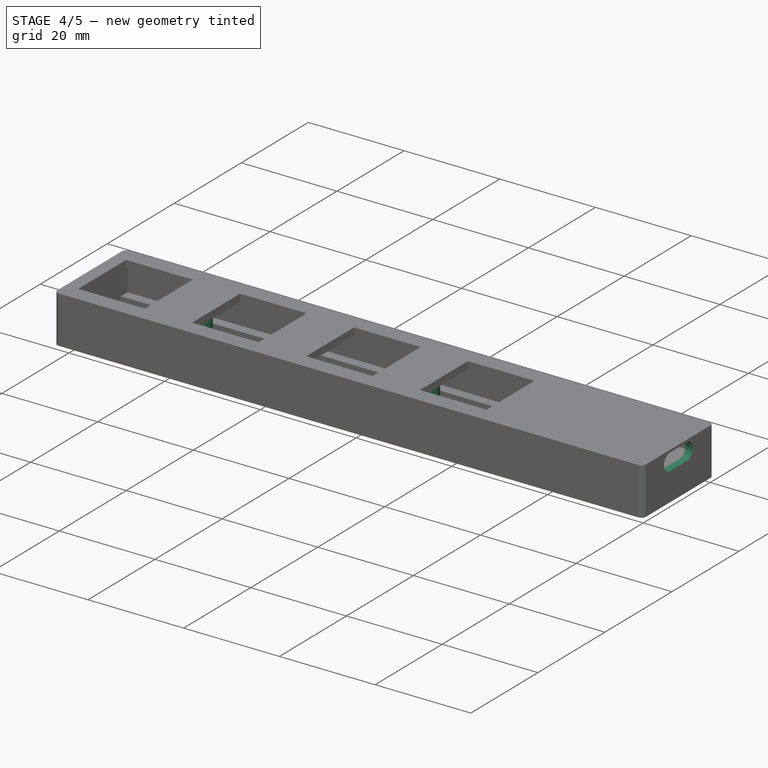
[diagram: stage 4 of 5 — iso view after this stage's code; geometry added in this stage tinted green]
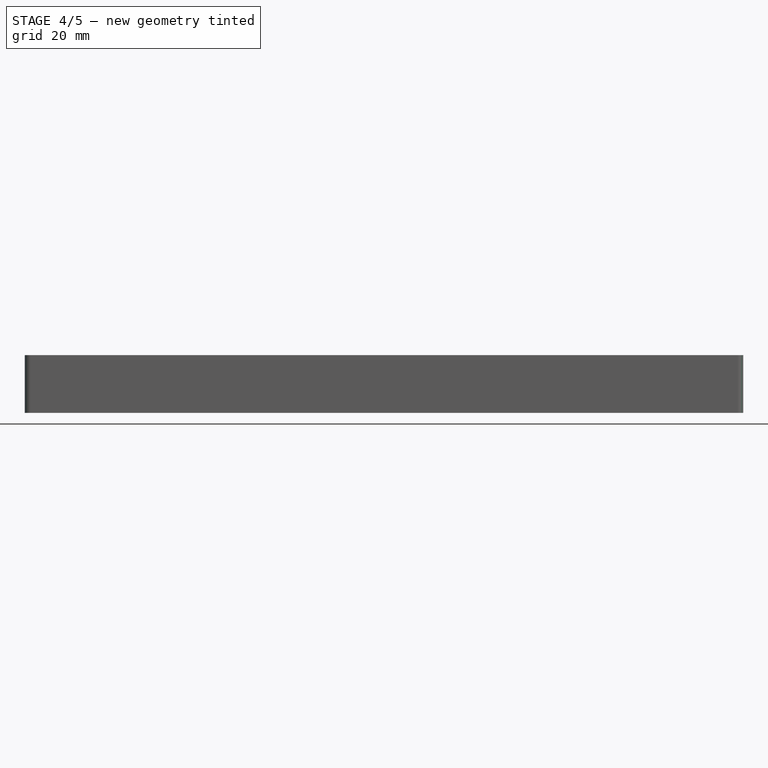
[diagram: stage 4 of 5 — front view after this stage's code; geometry added in this stage tinted green]
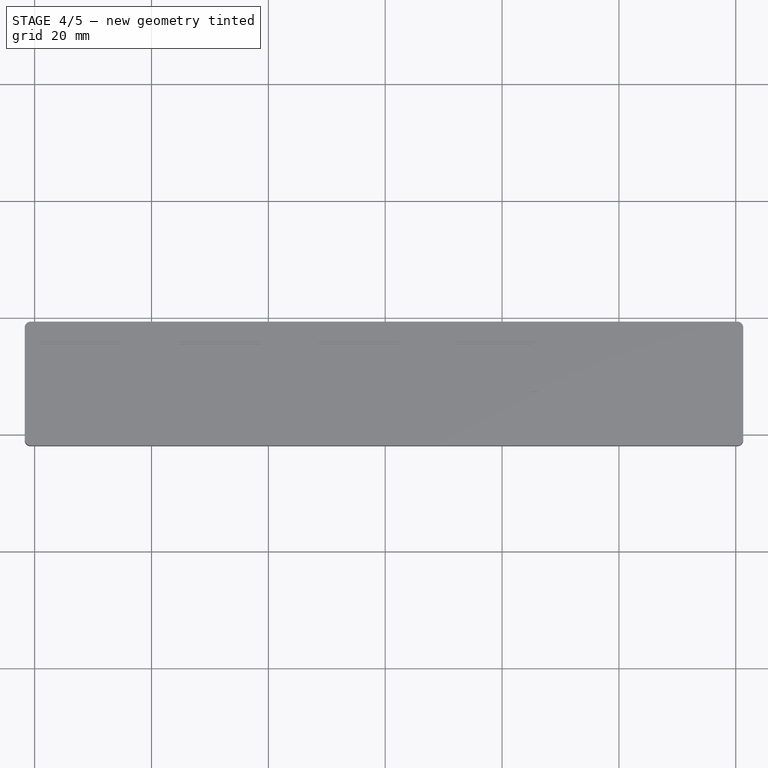
[diagram: stage 4 of 5 — top view after this stage's code; geometry added in this stage tinted green]
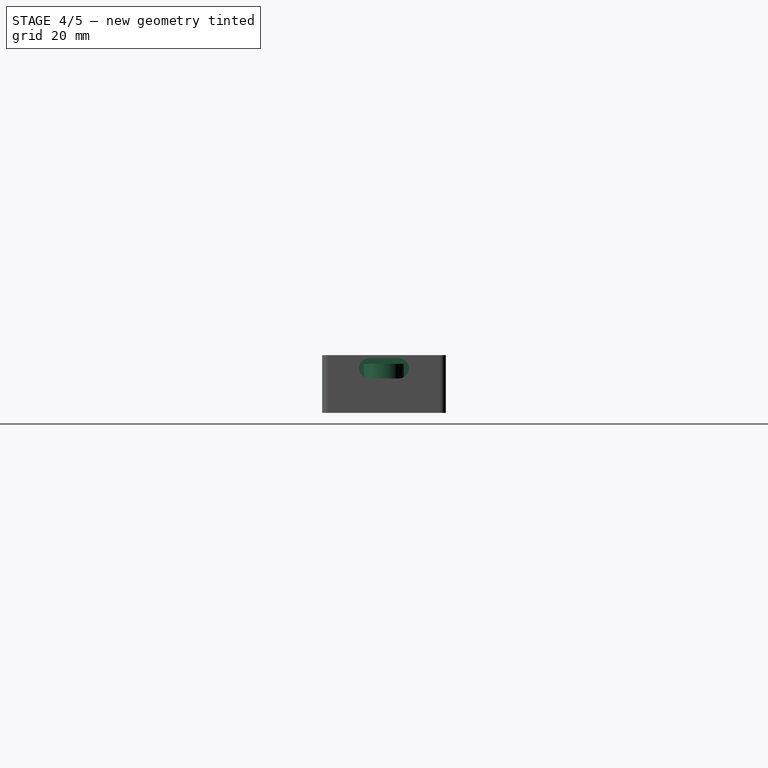
[diagram: stage 4 of 5 — right view after this stage's code; geometry added in this stage tinted green]
FEATURE [PartDesign::ShapeBinder] ShapeBinder002
  Support = -> [Pcb_f5c5]
  TraceSupport = false
FEATURE [Sketcher::SketchObject] Sketch008
  ExternalGeometry = -> [ShapeBinder002,Pocket001]
  MapMode = 5
  Placement = pos=(-93.4848,101.426,3.9) rot=(1,0,0;3.14159rad)
  Support = -> [Pocket001]
  sketch-geometry (32):
    g0: LineSegment StartX=112.484 StartY=96.2087 StartZ=0 EndX=112.484 EndY=101.88 EndZ=0
    g1: LineSegment StartX=112.484 StartY=101.88 StartZ=0 EndX=113.984 EndY=101.88 EndZ=0
    g2: LineSegment StartX=113.984 StartY=101.88 StartZ=0 EndX=113.984 EndY=96.2087 EndZ=0
    g3: LineSegment StartX=112.484 StartY=83.7 StartZ=0 EndX=112.484 EndY=89.3713 EndZ=0
    g4: LineSegment StartX=112.484 StartY=83.7 StartZ=0 EndX=113.984 EndY=83.7 EndZ=0
    g5: LineSegment StartX=113.984 StartY=83.7 StartZ=0 EndX=113.984 EndY=89.3713 EndZ=0
    g6: LineSegment StartX=136.234 StartY=101.88 StartZ=0 EndX=137.734 EndY=101.88 EndZ=0
    g7: LineSegment StartX=137.734 StartY=101.88 StartZ=0 EndX=137.734 EndY=83.7 EndZ=0
    g8: LineSegment StartX=137.734 StartY=83.7 StartZ=0 EndX=136.234 EndY=83.7 EndZ=0
    g9: LineSegment StartX=136.234 StartY=83.7 StartZ=0 EndX=136.234 EndY=101.88 EndZ=0
    g10: LineSegment StartX=159.984 StartY=101.88 StartZ=0 EndX=161.484 EndY=101.88 EndZ=0
    g11: LineSegment StartX=161.484 StartY=101.88 StartZ=0 EndX=161.484 EndY=96.2087 EndZ=0
    g12: LineSegment StartX=159.984 StartY=101.88 StartZ=0 EndX=159.984 EndY=96.2087 EndZ=0
    g13: LineSegment StartX=159.984 StartY=83.7 StartZ=0 EndX=161.484 EndY=83.7 EndZ=0
    g14: LineSegment StartX=161.484 StartY=83.7 StartZ=0 EndX=161.484 EndY=89.3713 EndZ=0
    g15: LineSegment StartX=159.984 StartY=83.7 StartZ=0 EndX=159.984 EndY=89.3713 EndZ=0
    g16: ArcOfCircle CenterX=113.234 CenterY=92.79 CenterZ=0 NormalX=0 NormalY=0 NormalZ=1 AngleXU=0 Radius=3.5 StartAngle=1.78676 EndAngle=4.49643
    g17: ArcOfCircle CenterX=113.234 CenterY=92.79 CenterZ=0 NormalX=0 NormalY=0 NormalZ=1 AngleXU=0 Radius=3.5 StartAngle=4.92835 EndAngle=7.63802
    g18: ArcOfCircle CenterX=160.734 CenterY=92.79 CenterZ=0 NormalX=0 NormalY=0 NormalZ=1 AngleXU=0 Radius=3.5 StartAngle=1.78676 EndAngle=4.49643
    g19: ArcOfCircle CenterX=160.734 CenterY=92.79 CenterZ=0 NormalX=0 NormalY=0 NormalZ=1 AngleXU=0 Radius=3.5 StartAngle=4.92835 EndAngle=7.63802
    g20: LineSegment [constr] StartX=161.484 StartY=101.88 StartZ=0 EndX=160.734 EndY=92.79 EndZ=0
    g21: LineSegment [constr] StartX=112.484 StartY=101.88 StartZ=0 EndX=113.234 EndY=92.79 EndZ=0
    g22: LineSegment [constr] StartX=113.234 StartY=92.79 StartZ=0 EndX=113.984 EndY=101.88 EndZ=0
    g23: LineSegment [constr] StartX=160.734 StartY=92.79 StartZ=0 EndX=159.984 EndY=101.88 EndZ=0
    g24: LineSegment [constr] StartX=112.484 StartY=83.7 StartZ=0 EndX=113.234 EndY=92.79 EndZ=0
    g25: LineSegment [constr] StartX=113.984 StartY=83.7 StartZ=0 EndX=113.234 EndY=92.79 EndZ=0
    g26: LineSegment [constr] StartX=159.984 StartY=83.7 StartZ=0 EndX=160.734 EndY=92.79 EndZ=0
    g27: LineSegment [constr] StartX=161.484 StartY=83.7 StartZ=0 EndX=160.734 EndY=92.79 EndZ=0
    g28: LineSegment [constr] StartX=113.234 StartY=92.79 StartZ=0 EndX=136.234 EndY=92.79 EndZ=0
    g29: LineSegment [constr] StartX=160.734 StartY=92.79 StartZ=0 EndX=137.734 EndY=92.79 EndZ=0
    g30: Circle CenterX=113.234 CenterY=92.79 CenterZ=0 NormalX=0 NormalY=0 NormalZ=1 AngleXU=0 Radius=1.45
    g31: Circle CenterX=160.734 CenterY=92.79 CenterZ=0 NormalX=0 NormalY=0 NormalZ=1 AngleXU=0 Radius=1.45
  constraints (86):
    c: PointOnObject(g0,g-5)
    c: Vertical(g0)
    c: Coincident(g1,g0)
    c: PointOnObject(g1,g-5)
    c: Coincident(g2,g1)
    c: Vertical(g2)
    c: PointOnObject(g3,g-6)
    c: Vertical(g3)
    c: Coincident(g4,g3)
    c: PointOnObject(g4,g-6)
    c: Coincident(g5,g4)
    c: Vertical(g5)
    c: Coincident(g6,g7)
    c: Coincident(g7,g8)
    c: Coincident(g8,g9)
    c: Coincident(g9,g6)
    c: Horizontal(g6)
    c: Horizontal(g8)
    c: Vertical(g7)
    c: Vertical(g9)
    c: PointOnObject(g6,g-5)
    c: PointOnObject(g7,g-6)
    c: PointOnObject(g10,g-5)
    c: PointOnObject(g10,g-5)
    c: Coincident(g11,g10)
    c: Vertical(g11)
    c: Coincident(g12,g10)
    c: Vertical(g12)
    c: PointOnObject(g13,g-6)
    c: PointOnObject(g13,g-6)
    c: Coincident(g14,g13)
    c: Vertical(g14)
    c: Coincident(g15,g13)
    c: Vertical(g15)
    c: Coincident(g16,g-3)
    c: Coincident(g16,g0)
    c: Coincident(g16,g3)
    c: Coincident(g17,g16)
    c: Coincident(g17,g5)
    c: Coincident(g17,g2)
    c: Coincident(g18,g-4)
    c: Coincident(g18,g12)
    c: Coincident(g18,g15)
    c: Coincident(g19,g18)
    c: Coincident(g19,g14)
    c: Coincident(g19,g11)
    c: Equal(g17,g16)
    c: Equal(g16,g18)
    c: Equal(g18,g19)
    c: Equal(g1,g6)
    c: Equal(g6,g10)
    c: Equal(g10,g13)
    c: Equal(g13,g4)
    c: DistanceX(g6,g6) = 1.5
    c: Coincident(g20,g10)
    c: Coincident(g20,g18)
    c: Coincident(g21,g0)
    c: Coincident(g21,g16)
    c: Coincident(g22,g16)
    c: Coincident(g22,g1)
    c: Equal(g21,g22)
    c: Coincident(g23,g18)
    c: Coincident(g23,g10)
    c: Equal(g23,g20)
    c: Radius(g18) = 3.5
    c: Coincident(g24,g3)
    c: Coincident(g24,g16)
    c: Coincident(g25,g4)
    c: Coincident(g25,g16)
    c: Coincident(g26,g13)
    c: Coincident(g26,g18)
    c: Coincident(g27,g13)
    c: Coincident(g27,g18)
    c: Equal(g27,g26)
    c: Equal(g25,g24)
    c: Coincident(g28,g16)
    c: PointOnObject(g28,g9)
    c: Horizontal(g28)
    c: Coincident(g29,g18)
    c: PointOnObject(g29,g7)
    c: Horizontal(g29)
    c: Equal(g29,g28)
    c: Coincident(g30,g16)
    c: Coincident(g31,g18)
    c: Equal(g31,g30)
    c: Radius(g30) = 1.45
FEATURE [PartDesign::Pad] Pad006
  BaseFeature = -> Pocket001
  Length = 3.5
  Length2 = 100
  Placement = pos=(-93.4848,101.426,-1.6) rot=(0,0,1;0rad)
  Profile = -> Sketch008
  Type = 0
FEATURE [Sketcher::SketchObject] Sketch009
  ExternalGeometry = -> [Pad006]
  MapMode = 5
  Placement = pos=(-93.4848,101.426,3.9) rot=(1,0,0;3.14159rad)
  Support = -> [Pad006]
  sketch-geometry (10):
    g0: LineSegment StartX=200.271 StartY=83.7 StartZ=0 EndX=191.271 EndY=83.7 EndZ=0
    g1: LineSegment StartX=191.271 StartY=83.7 StartZ=0 EndX=191.271 EndY=85.7 EndZ=0
    g2: LineSegment StartX=191.271 StartY=85.7 StartZ=0 EndX=200.271 EndY=85.7 EndZ=0
    g3: LineSegment StartX=200.271 StartY=85.7 StartZ=0 EndX=200.271 EndY=83.7 EndZ=0
    g4: LineSegment StartX=200.271 StartY=101.88 StartZ=0 EndX=183.271 EndY=101.88 EndZ=0
    g5: LineSegment StartX=183.271 StartY=101.88 StartZ=0 EndX=183.271 EndY=99.88 EndZ=0
    g6: LineSegment StartX=183.271 StartY=99.88 StartZ=0 EndX=200.271 EndY=99.88 EndZ=0
    g7: LineSegment StartX=200.271 StartY=99.88 StartZ=0 EndX=200.271 EndY=101.88 EndZ=0
    g8: LineSegment [constr] StartX=200.271 StartY=85.7 StartZ=0 EndX=213.271 EndY=85.7 EndZ=0
    g9: LineSegment [constr] StartX=200.271 StartY=99.88 StartZ=0 EndX=213.271 EndY=99.88 EndZ=0
  constraints (30):
    c: Coincident(g0,g1)
    c: Coincident(g1,g2)
    c: Coincident(g2,g3)
    c: Coincident(g3,g0)
    c: Horizontal(g0)
    c: Horizontal(g2)
    c: Vertical(g1)
    c: Vertical(g3)
    c: PointOnObject(g0,g-5)
    c: Coincident(g4,g5)
    c: Coincident(g5,g6)
    c: Coincident(g6,g7)
    c: Coincident(g7,g4)
    c: Horizontal(g4)
    c: Horizontal(g6)
    c: Vertical(g5)
    c: Vertical(g7)
    c: PointOnObject(g4,g-3)
    c: Coincident(g8,g2)
    c: PointOnObject(g8,g-4)
    c: Horizontal(g8)
    c: Coincident(g9,g6)
    c: PointOnObject(g9,g-4)
    c: Horizontal(g9)
    c: DistanceX(g8,g8) = 13
    c: Equal(g9,g8)
    c: DistanceX(g2,g2) = 9
    c: DistanceX(g6,g6) = 17
    c: Equal(g7,g3)
    c: DistanceY(g1,g1) = 2
FEATURE [PartDesign::Pad] Pad007
  BaseFeature = -> Pad006
  Length = 2
  Length2 = 100
  Placement = pos=(-93.4848,101.426,-1.6) rot=(0,0,1;0rad)
  Profile = -> Sketch009
  Type = 0
FEATURE [Sketcher::SketchObject] Sketch010
  ExternalGeometry = -> [Pad007]
  MapMode = 5
  Placement = pos=(121.286,101.426,-1.6) rot=(0.57735,0.57735,0.57735;2.0944rad)
  Support = -> [Pad007]
  sketch-geometry (7):
    g0: ArcOfCircle CenterX=-95.29 CenterY=4.75 CenterZ=0 NormalX=0 NormalY=0 NormalZ=1 AngleXU=0 Radius=1.75 StartAngle=1.5708 EndAngle=4.71239
    g1: ArcOfCircle CenterX=-90.29 CenterY=4.75 CenterZ=0 NormalX=0 NormalY=0 NormalZ=1 AngleXU=0 Radius=1.75 StartAngle=4.71239 EndAngle=7.85398
    g2: LineSegment StartX=-95.29 StartY=3 StartZ=0 EndX=-90.29 EndY=3 EndZ=0
    g3: LineSegment StartX=-95.29 StartY=6.5 StartZ=0 EndX=-90.29 EndY=6.5 EndZ=0
    g4: LineSegment [constr] StartX=-90.29 StartY=4.75 StartZ=0 EndX=-82.2 EndY=4.75 EndZ=0
    g5: LineSegment [constr] StartX=-95.29 StartY=4.75 StartZ=0 EndX=-103.38 EndY=4.75 EndZ=0
    g6: LineSegment [constr] StartX=-90.29 StartY=6.5 StartZ=0 EndX=-90.29 EndY=7 EndZ=0
  constraints (19):
    c: Tangent(g0,g3)
    c: Tangent(g0,g2)
    c: Tangent(g2,g1)
    c: Tangent(g3,g1)
    c: Horizontal(g2)
    c: Equal(g0,g1)
    c: Radius(g1) = 1.75
    c: Coincident(g4,g1)
    c: PointOnObject(g4,g-3)
    c: Horizontal(g4)
    c: Coincident(g5,g0)
    c: PointOnObject(g5,g-4)
    c: Horizontal(g5)
    c: Equal(g5,g4)
    c: DistanceX(g3,g3) = 5
    c: Coincident(g6,g1)
    c: PointOnObject(g6,g-5)
    c: Vertical(g6)
    c: DistanceY(g6,g6) = 0.5
FEATURE [PartDesign::Pocket] Pocket002
  BaseFeature = -> Pad007
  Length = 6.5
  Length2 = 100
  Placement = pos=(-93.4848,101.426,-1.6) rot=(0,0,1;0rad)
  Profile = -> Sketch010
  Type = 0
FEATURE [PartDesign::Fillet] Fillet
  Base = -> Pocket002 [Edge4,Edge22,Edge2,Edge12]
  BaseFeature = -> Pocket002
  Placement = pos=(-93.4848,101.426,-1.6) rot=(0,0,1;0rad)
  Radius = 1
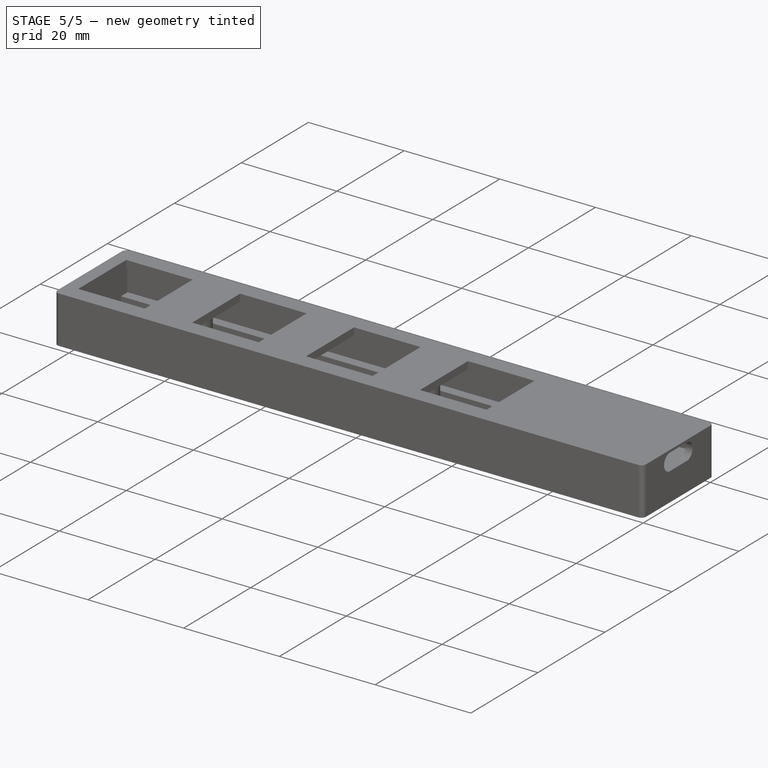
[diagram: stage 5 of 5 — iso view after this stage's code; geometry added in this stage tinted green]
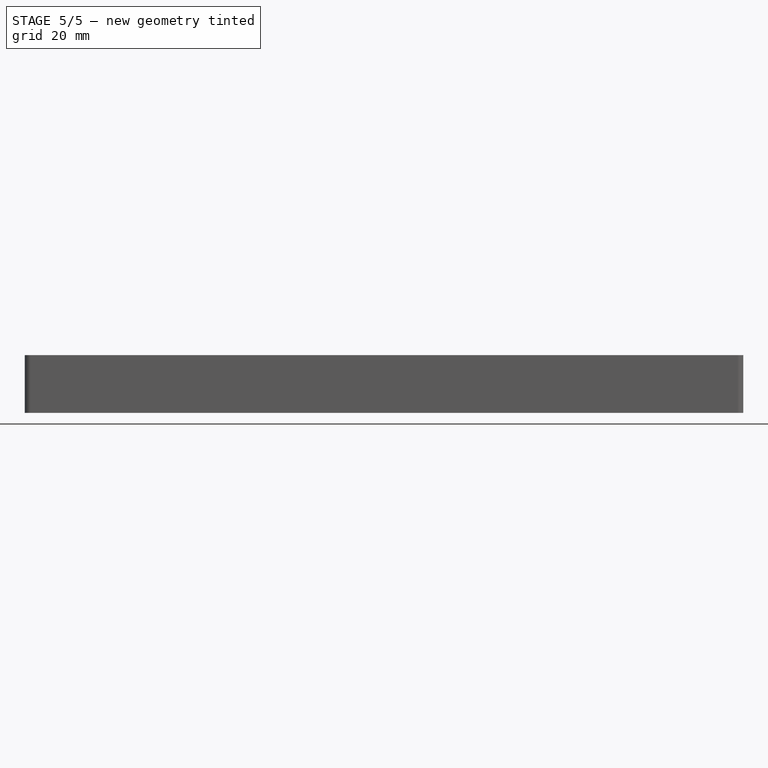
[diagram: stage 5 of 5 — front view after this stage's code; geometry added in this stage tinted green]
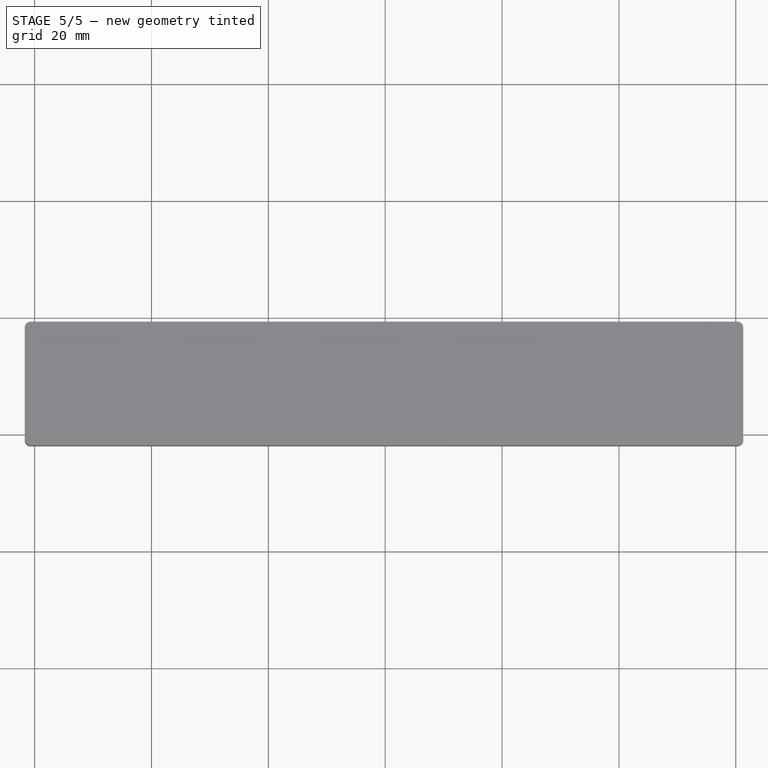
[diagram: stage 5 of 5 — top view after this stage's code; geometry added in this stage tinted green]
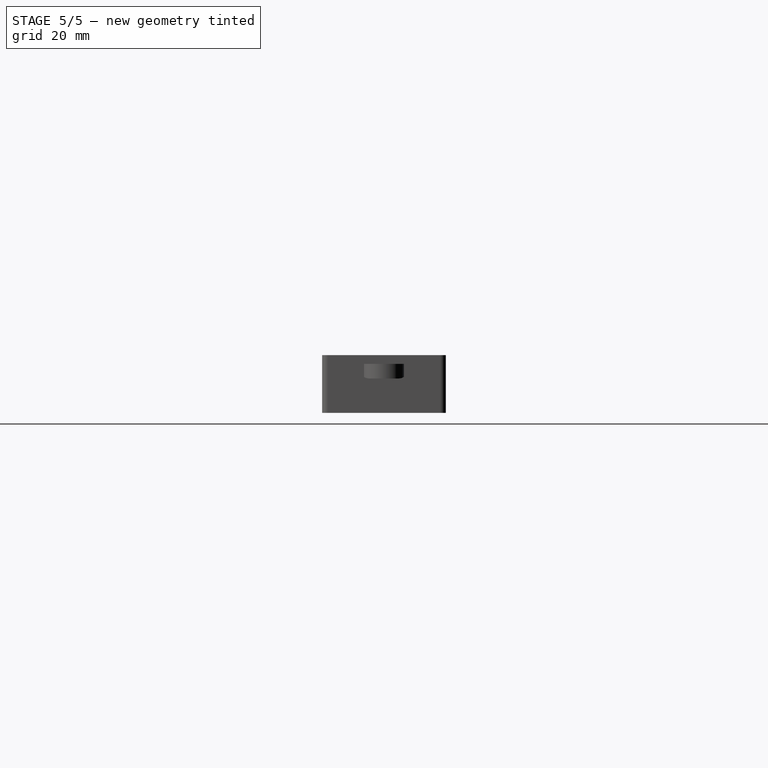
[diagram: stage 5 of 5 — right view after this stage's code; geometry added in this stage tinted green]
FEATURE [PartDesign::ShapeBinder] ShapeBinder003
  Placement = pos=(-93.4848,101.426,-1.6) rot=(0,0,1;0rad)
  Support = -> [Chamfer]
  TraceSupport = false
FEATURE [Sketcher::SketchObject] Sketch011
  ExternalGeometry = -> [ShapeBinder003,Fillet]
  MapMode = 5
  Placement = pos=(-93.4848,-0.454,-1.6) rot=(0,0.707107,0.707107;3.14159rad)
  Support = -> [Fillet]
  sketch-geometry (3):
    g0: ArcOfCircle CenterX=-213.271 CenterY=0.1 CenterZ=0 NormalX=0 NormalY=0 NormalZ=1 AngleXU=0 Radius=1.2 StartAngle=4.71239 EndAngle=7.85398
    g1: LineSegment [constr] StartX=-213.271 StartY=0.1 StartZ=0 EndX=-213.071 EndY=0.1 EndZ=0
    g2: LineSegment StartX=-213.271 StartY=1.3 StartZ=0 EndX=-213.271 EndY=-1.1 EndZ=0
  constraints (9):
    c: PointOnObject(g0,g-4)
    c: PointOnObject(g0,g-4)
    c: PointOnObject(g0,g-4)
    c: Equal(g-3,g0)
    c: Coincident(g1,g0)
    c: Coincident(g1,g-3)
    c: Horizontal(g1)
    c: Coincident(g2,g0)
    c: Coincident(g2,g0)
FEATURE [PartDesign::Pad] Pad008
  BaseFeature = -> Fillet
  Length = 10
  Length2 = 100
  Placement = pos=(-93.4848,101.426,-1.6) rot=(0,0,1;0rad)
  Profile = -> Sketch011
  Type = 2
FEATURE [Sketcher::SketchObject] Sketch012
  ExternalGeometry = -> [Pad008]
  MapMode = 5
  Placement = pos=(-93.4848,19.226,-1.6) rot=(0,0.707107,0.707107;3.14159rad)
  Support = -> [Pad008]
  sketch-geometry (8):
    g0: LineSegment StartX=-162.059 StartY=4.55 StartZ=0 EndX=-112.059 EndY=4.55 EndZ=0
    g1: LineSegment StartX=-112.059 StartY=4.55 StartZ=0 EndX=-112.059 EndY=-0.45 EndZ=0
    g2: LineSegment StartX=-112.059 StartY=-0.45 StartZ=0 EndX=-162.059 EndY=-0.45 EndZ=0
    g3: LineSegment StartX=-162.059 StartY=-0.45 StartZ=0 EndX=-162.059 EndY=4.55 EndZ=0
    g4: LineSegment [constr] StartX=-162.059 StartY=4.55 StartZ=0 EndX=-179.709 EndY=4.55 EndZ=0
    g5: LineSegment [constr] StartX=-112.059 StartY=-0.45 StartZ=0 EndX=-94.4088 EndY=-0.45 EndZ=0
    g6: LineSegment [constr] StartX=-112.059 StartY=-0.45 StartZ=0 EndX=-112.059 EndY=-2.9 EndZ=0
    g7: LineSegment [constr] StartX=-162.059 StartY=4.55 StartZ=0 EndX=-162.059 EndY=7 EndZ=0
  constraints (24):
    c: Coincident(g0,g1)
    c: Coincident(g1,g2)
    c: Coincident(g2,g3)
    c: Coincident(g3,g0)
    c: Horizontal(g0)
    c: Horizontal(g2)
    c: Vertical(g1)
    c: Vertical(g3)
    c: DistanceX(g0,g0) = 50
    c: DistanceY(g1,g1) = 5
    c: Coincident(g4,g0)
    c: PointOnObject(g4,g-3)
    c: Horizontal(g4)
    c: Coincident(g5,g1)
    c: PointOnObject(g5,g-4)
    c: Horizontal(g5)
    c: Coincident(g6,g1)
    c: PointOnObject(g6,g-6)
    c: Vertical(g6)
    c: Coincident(g7,g0)
    c: PointOnObject(g7,g-5)
    c: Vertical(g7)
    c: Equal(g7,g6)
    c: Equal(g5,g4)
FEATURE [PartDesign::Pocket] Pocket003
  BaseFeature = -> Pad008
  Length = 1
  Length2 = 100
  Placement = pos=(-93.4848,101.426,-1.6) rot=(0,0,1;0rad)
  Profile = -> Sketch012
  Type = 0
FEATURE [PartDesign::Chamfer] Chamfer001
  Base = -> Pocket003 [Edge7,Edge8,Edge5,Edge6]
  BaseFeature = -> Pocket003
  Placement = pos=(-93.4848,101.426,-1.6) rot=(0,0,1;0rad)
  Size = 0.5
FEATURE [Sketcher::SketchObject] Sketch013
  ExternalGeometry = -> [Chamfer001]
  MapMode = 5
  Placement = pos=(-93.4848,101.426,3.9) rot=(1,0,0;3.14159rad)
  Support = -> [Chamfer001]
  sketch-geometry (2):
    g0: Circle CenterX=113.234 CenterY=92.79 CenterZ=0 NormalX=0 NormalY=0 NormalZ=1 AngleXU=0 Radius=1.45
    g1: Circle CenterX=160.734 CenterY=92.79 CenterZ=0 NormalX=0 NormalY=0 NormalZ=1 AngleXU=0 Radius=1.45
  constraints (4):
    c: Coincident(g0,g-3)
    c: Coincident(g1,g-4)
    c: Equal(g1,g0)
    c: Equal(g-3,g0)
FEATURE [PartDesign::Pocket] Pocket004
  BaseFeature = -> Chamfer001
  Length = 1
  Length2 = 100
  Placement = pos=(-93.4848,101.426,-1.6) rot=(0,0,1;0rad)
  Profile = -> Sketch013
  Type = 0
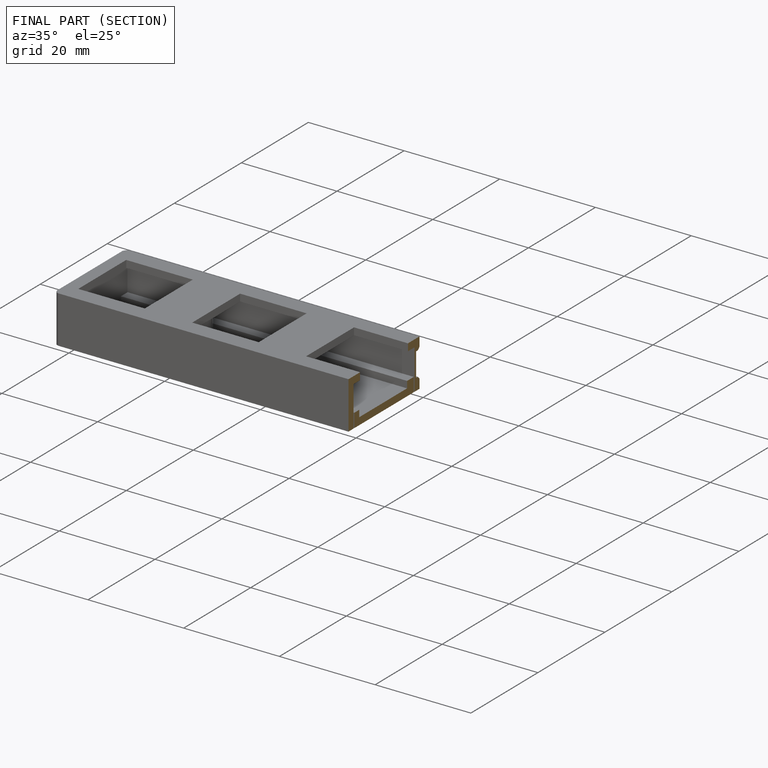
[diagram: finished part — half-section view (interior)]
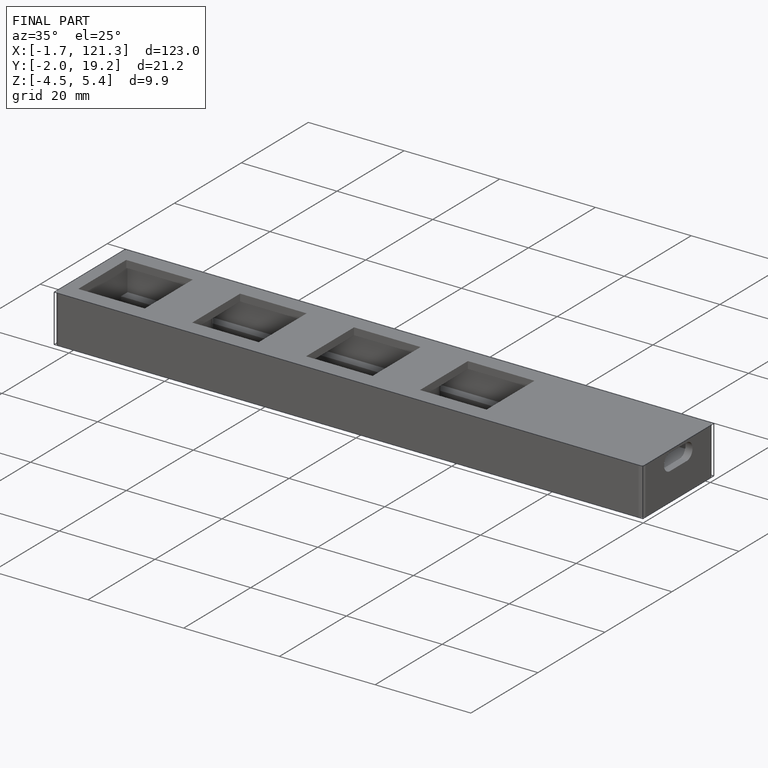
[diagram: finished part — iso view with bounding-box wireframe]
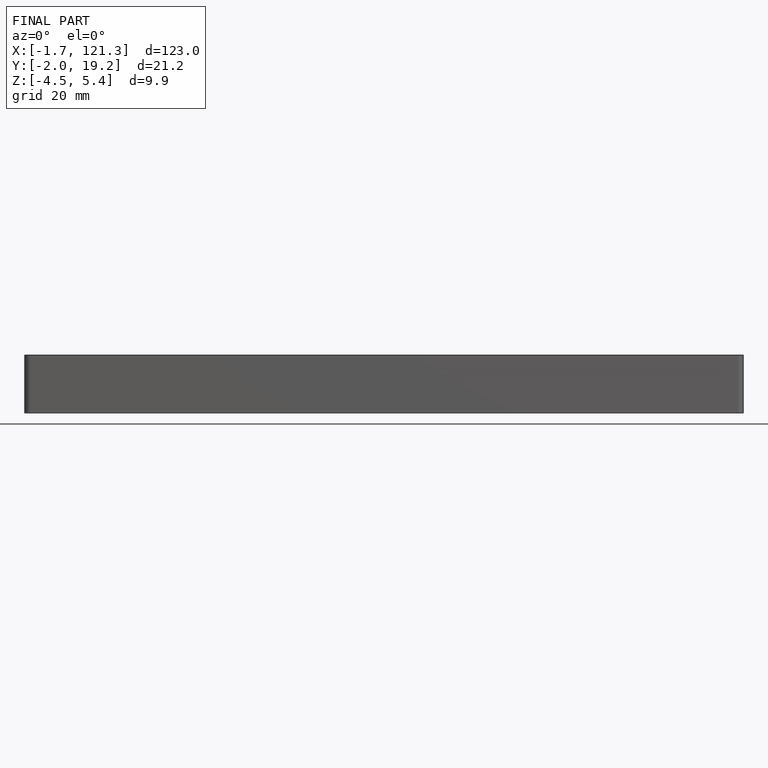
[diagram: finished part — front view with bounding-box wireframe]
